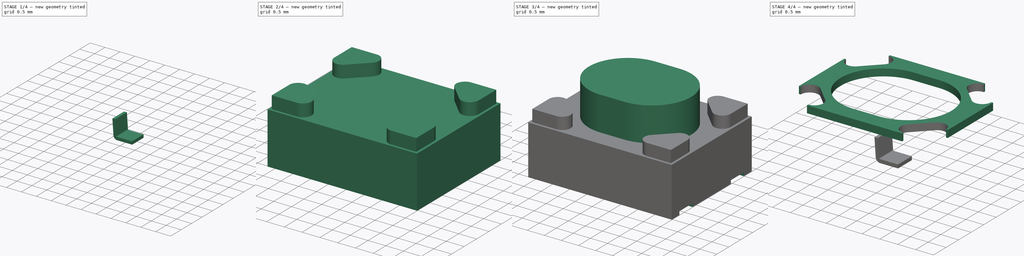
[diagram: build sequence overview — one tinted view per stage of 4, left to right]
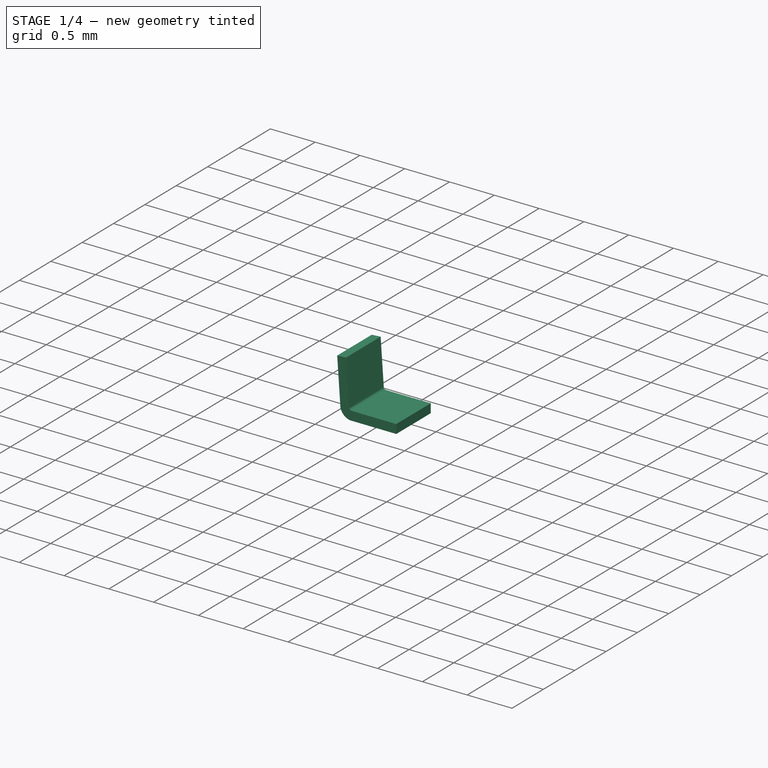
[diagram: stage 1 of 4 — iso view after this stage's code; geometry added in this stage tinted green]
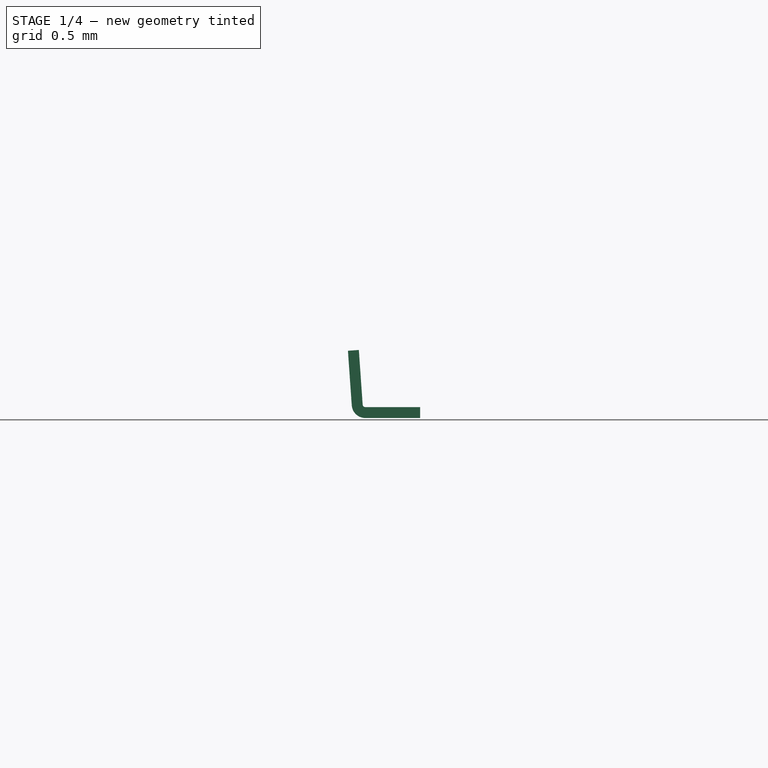
[diagram: stage 1 of 4 — front view after this stage's code; geometry added in this stage tinted green]
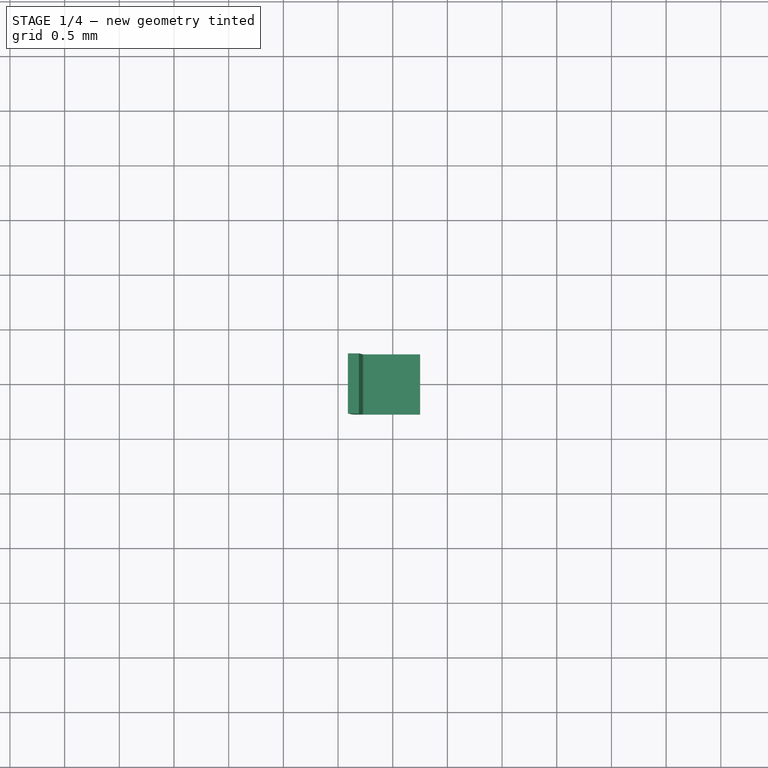
[diagram: stage 1 of 4 — top view after this stage's code; geometry added in this stage tinted green]
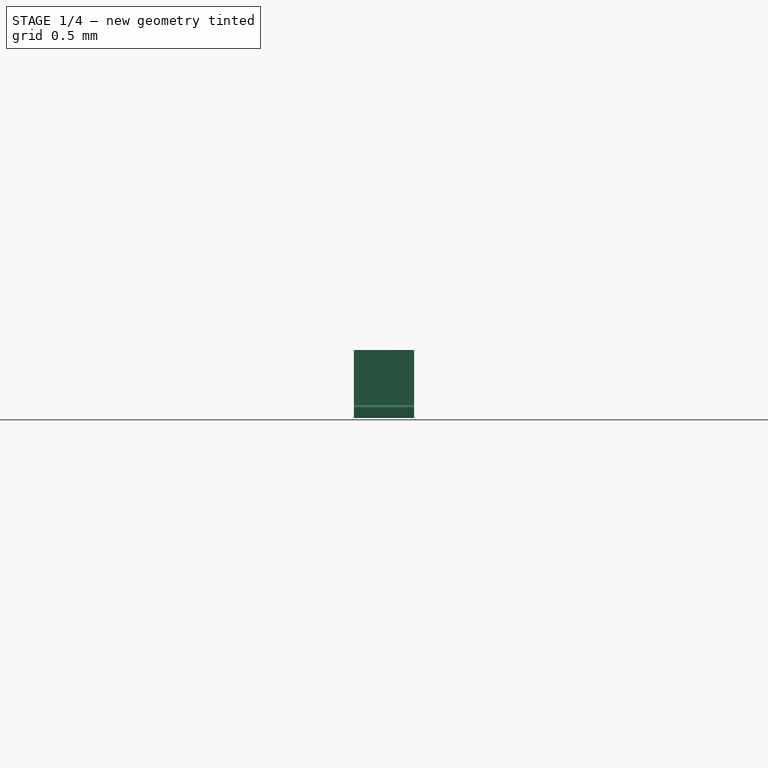
[diagram: stage 1 of 4 — right view after this stage's code; geometry added in this stage tinted green]
FCSTD DOCUMENT  (FreeCAD 0.22R37543 (Git))
Label: TSA016A2518C
License: All rights reserved
LicenseURL: https://en.wikipedia.org/wiki/All_rights_reserved
objects: Sketcher::SketchObject×6, PartDesign::Pad×5, PartDesign::Mirrored×4, PartDesign::Body×3, App::Link×3, PartDesign::MultiTransform×2, PartDesign::FeaturePython×2, PartDesign::SubShapeBinder×1, PartDesign::Pocket×1, App::Part×1
note: 30 computed .brp shape members not serialized (recipe doc carries the construction recipe); baked Part::Feature solids carry a one-line shape summary decoded from their .brp

FEATURE [PartDesign::Body] Body  label="MainBody"
  AllowCompound = false
  Group = -> [Sketch,Pad,Sketch001,Pad001,MultiTransform,Mirrored,Mirrored001,Sketch002,Pad002,Sketch004,Pocket,MultiTransform001,Mirrored002,Mirrored003,Sketch005,Pad004]
  Origin = -> Origin001
  Placement = pos=(0,0,0.05) rot=(0,0,1;0rad)
  Tip = -> Pad004
FEATURE [PartDesign::FeaturePython] BaseShape  # WARN: FeaturePython — macro-defined, semantics opaque (R4)
  Suppressed = false
  fillGaps = true
  flangeWidth = 5
  height = 10
  length = 0.5
  originLoc = 4
  radius = 0.2
  shapeType = 0
  thickness = 0.1
  width = 0.55
FEATURE [PartDesign::FeaturePython] Bend  # WARN: FeaturePython — macro-defined, semantics opaque (R4)
  AutoMiter = true
  BaseFeature = -> BaseShape
  BendType = 0
  LengthList = [0.5]
  LengthSpec = 0
  ReliefFactor = 0.7
  Suppressed = false
  UseReliefFactor = false
  angle = 86
  baseObject = -> BaseShape [Edge2]
  bendAList = [86]
  extend1 = 0
  extend2 = 0
  gap1 = 0
  gap2 = 0
  invert = false
  kfactor = 0.5
  length = 0.5
  maxExtendDist = 5
  minGap = 0.2
  minReliefGap = 1
  miterangle1 = 0
  miterangle2 = 0
  offset = 0
  radius = 0.025
  reliefType = 0
  reliefd = 1
  reliefw = 0.8
  sketchflip = false
  sketchinvert = false
  unfold = false
FEATURE [PartDesign::Body] Body003  label="Pin1"
  AllowCompound = false
  Group = -> [BaseShape,Bend]
  Origin = -> Origin004
  Placement = pos=(-1.85,1.07,0.05) rot=(0,0,1;0rad)
  Tip = -> Bend
FEATURE [App::Link] Link  label="Pin3"
  LinkPlacement = pos=(-1.85,-1.075,0.05) rot=(0,0,1;0rad)
  LinkedObject = -> Body003
  Placement = pos=(-1.85,-1.075,0.05) rot=(0,0,1;0rad)
FEATURE [App::Link] Link001  label="Pin4"
  LinkPlacement = pos=(1.85,-1.075,0.05) rot=(0,0,1;3.14159rad)
  LinkedObject = -> Link
  Placement = pos=(1.85,-1.075,0.05) rot=(0,0,1;3.14159rad)
FEATURE [App::Link] Link002  label="Pin2"
  LinkPlacement = pos=(1.85,1.075,0.05) rot=(0,0,1;3.14159rad)
  LinkedObject = -> Body003
  Placement = pos=(1.85,1.075,0.05) rot=(0,0,1;3.14159rad)
FEATURE [App::Part] Part  label="TSA016A2518C"
  Group = -> [Body,Body001,Body003,Link002,Link,Link001]
  Origin = -> Origin
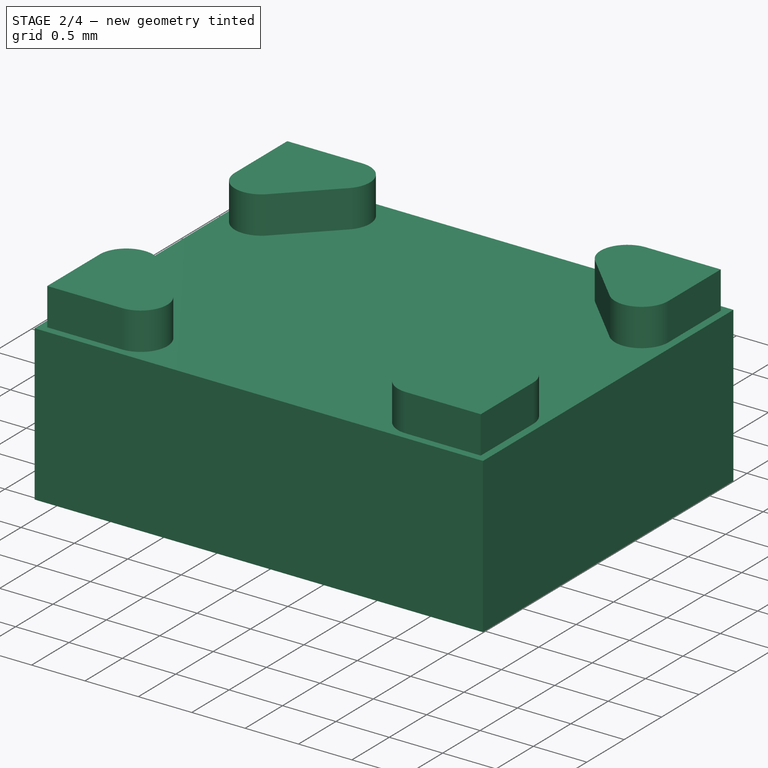
[diagram: stage 2 of 4 — iso view after this stage's code; geometry added in this stage tinted green]
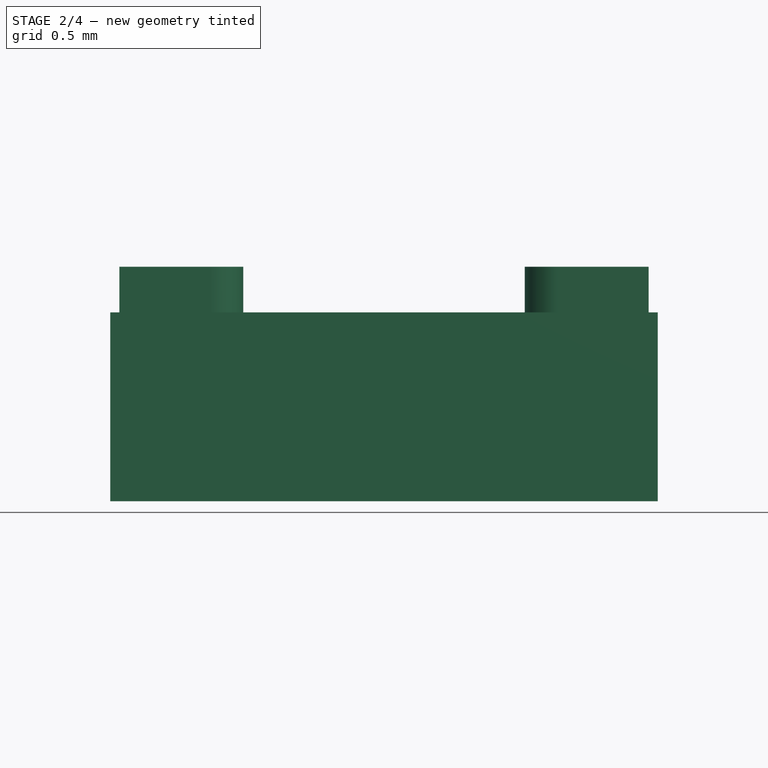
[diagram: stage 2 of 4 — front view after this stage's code; geometry added in this stage tinted green]
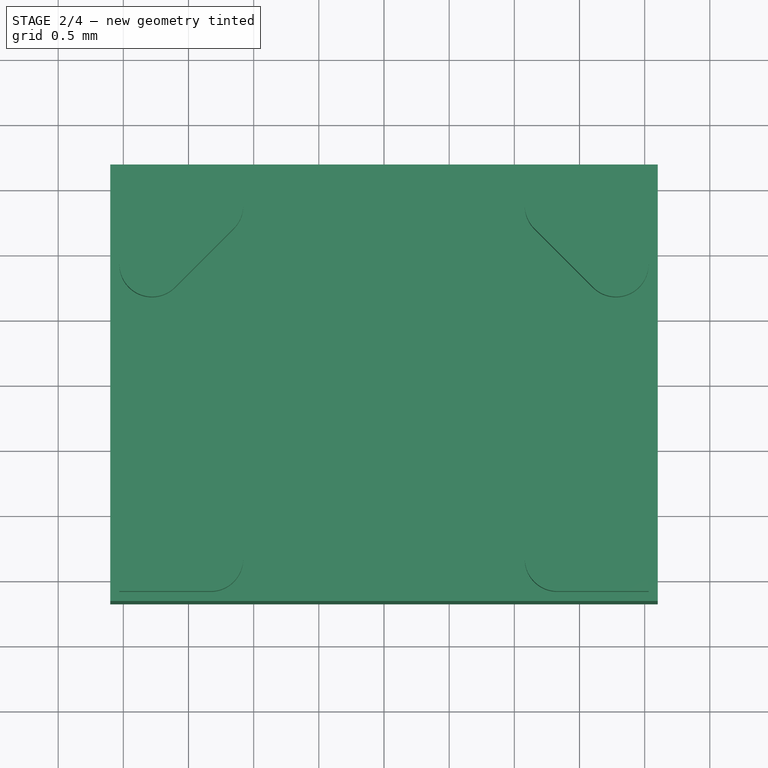
[diagram: stage 2 of 4 — top view after this stage's code; geometry added in this stage tinted green]
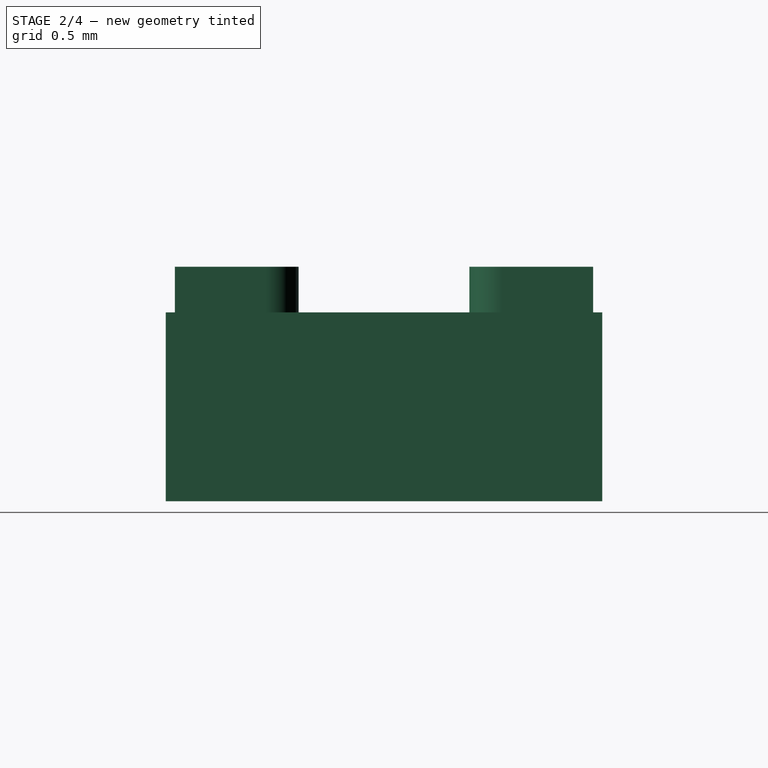
[diagram: stage 2 of 4 — right view after this stage's code; geometry added in this stage tinted green]
FEATURE [Sketcher::SketchObject] Sketch
  AttachmentSupport = -> [XY_Plane001]
  FullyConstrained = true
  MapMode = 5
  Support = -> [XY_Plane001]
  sketch-geometry (5):
    g0: LineSegment StartX=-2.1 StartY=-1.675 StartZ=0 EndX=2.1 EndY=-1.675 EndZ=0
    g1: LineSegment StartX=2.1 StartY=-1.675 StartZ=0 EndX=2.1 EndY=1.675 EndZ=0
    g2: LineSegment StartX=2.1 StartY=1.675 StartZ=0 EndX=-2.1 EndY=1.675 EndZ=0
    g3: LineSegment StartX=-2.1 StartY=1.675 StartZ=0 EndX=-2.1 EndY=-1.675 EndZ=0
    g4: GeomPoint X=0 Y=0 Z=0
  constraints (12):
    c: Coincident(g0,g1)
    c: Coincident(g1,g2)
    c: Coincident(g2,g3)
    c: Coincident(g3,g0)
    c: Horizontal(g0)
    c: Horizontal(g2)
    c: Vertical(g1)
    c: Vertical(g3)
    c: Symmetric(g2,g0,g4)
    c: Distance(g1,g3) = 4.2
    c: Distance(g0,g2) = 3.35
    c: Coincident(g4,g-1)
FEATURE [PartDesign::Pad] Pad
  Direction = (0,0,1)
  Length = 1.45
  Length2 = 10
  Profile = -> Sketch
  ReferenceAxis = -> Sketch [N_Axis]
  Suppressed = false
  Type = 0
FEATURE [Sketcher::SketchObject] Sketch001
  AttachmentSupport = -> [Pad]
  ExternalGeometry = -> [Pad]
  FullyConstrained = true
  MapMode = 5
  Placement = pos=(0,0,1.45) rot=(0,0,1;0rad)
  Support = -> [Pad]
  sketch-geometry (5):
    g0: LineSegment StartX=-2.03 StartY=1.605 StartZ=0 EndX=-1.33 EndY=1.605 EndZ=0
    g1: ArcOfCircle CenterX=-1.33 CenterY=1.355 CenterZ=0 NormalX=0 NormalY=0 NormalZ=1 AngleXU=0 Radius=0.25 StartAngle=5.49779 EndAngle=7.85398
    g2: LineSegment StartX=-1.15322 StartY=1.17822 StartZ=0 EndX=-1.60322 EndY=0.728223 EndZ=0
    g3: ArcOfCircle CenterX=-1.78 CenterY=0.905 CenterZ=0 NormalX=0 NormalY=0 NormalZ=1 AngleXU=0 Radius=0.25 StartAngle=3.14159 EndAngle=5.49779
    g4: LineSegment StartX=-2.03 StartY=1.605 StartZ=0 EndX=-2.03 EndY=0.905 EndZ=0
  constraints (13):
    c: Horizontal(g0)
    c: Tangent(g0,g1) = 1.5708
    c: Tangent(g1,g2) = 1.5708
    c: Tangent(g2,g3) = 1.5708
    c: DistanceX(g0,g0) = 0.7
    c: Equal(g3,g1)
    c: Coincident(g4,g0)
    c: Vertical(g4)
    c: Tangent(g4,g3) = -1.5708
    c: Equal(g0,g4)
    c: Radius(g3) = 0.25
    c: Distance(g-3,g0) = 0.07
    c: Distance(g-3,g4) = 0.07
FEATURE [PartDesign::Pad] Pad001
  BaseFeature = -> Pad
  Direction = (0,0,1)
  Length = 0.35
  Length2 = 10
  Profile = -> Sketch001
  ReferenceAxis = -> Sketch001 [N_Axis]
  Suppressed = false
  Type = 0
FEATURE [PartDesign::Mirrored] Mirrored
  MirrorPlane = -> Sketch001 [V_Axis]
  Suppressed = false
FEATURE [PartDesign::Mirrored] Mirrored001
  MirrorPlane = -> Sketch001 [H_Axis]
  Suppressed = false
FEATURE [PartDesign::MultiTransform] MultiTransform
  BaseFeature = -> Pad001
  Originals = -> [Pad001]
  Suppressed = false
  Transformations = -> [Mirrored,Mirrored001]
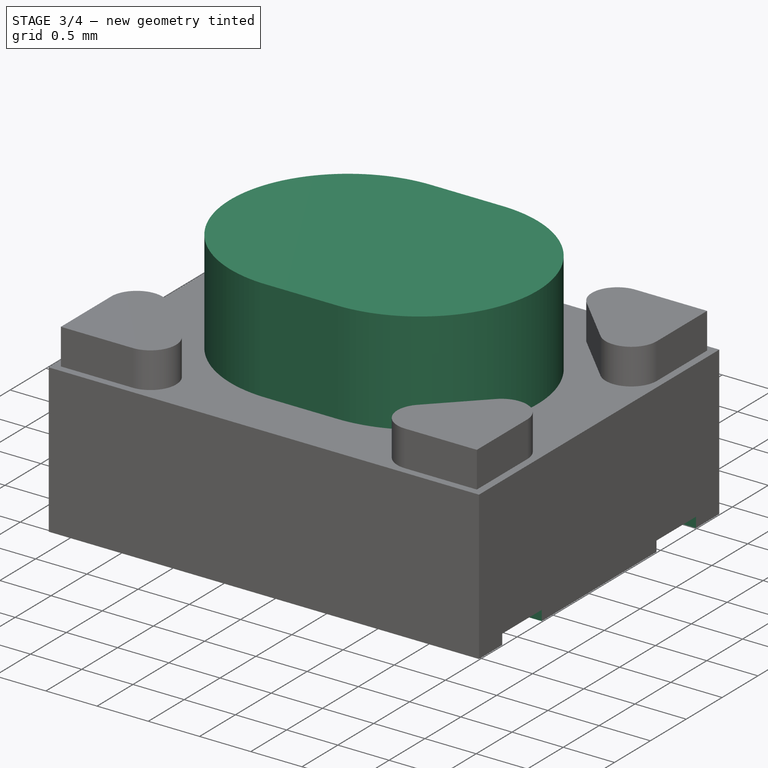
[diagram: stage 3 of 4 — iso view after this stage's code; geometry added in this stage tinted green]
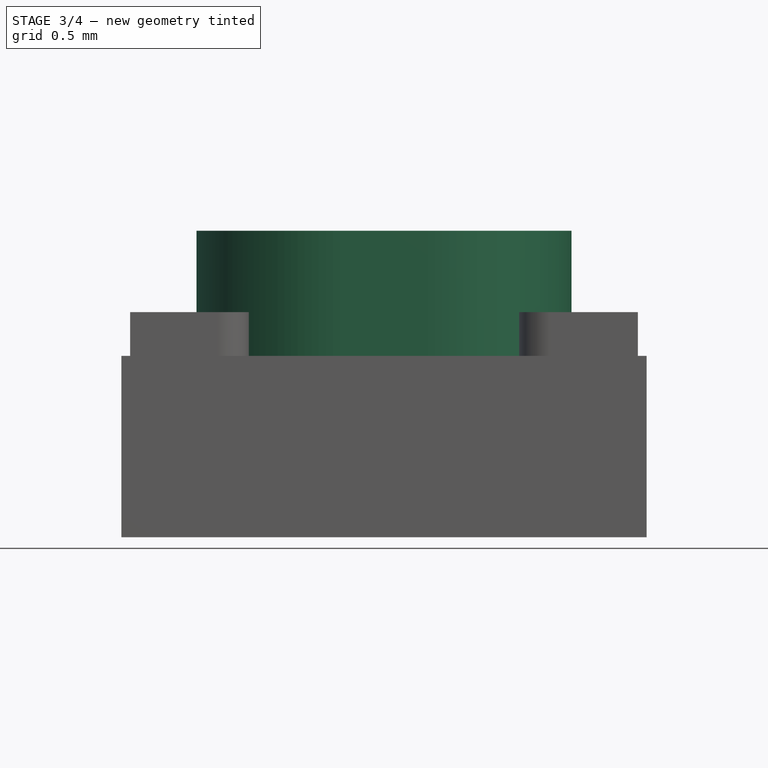
[diagram: stage 3 of 4 — front view after this stage's code; geometry added in this stage tinted green]
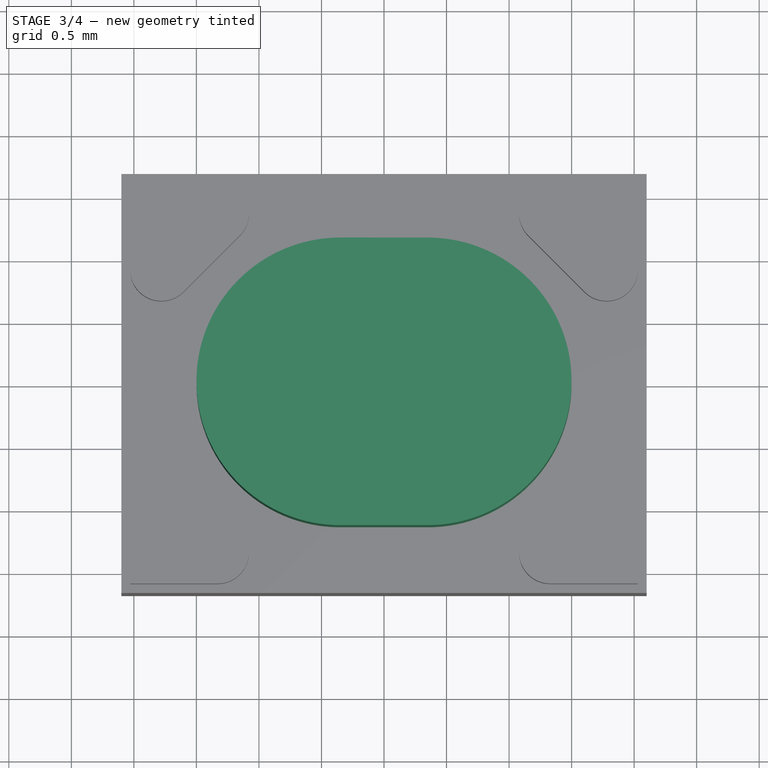
[diagram: stage 3 of 4 — top view after this stage's code; geometry added in this stage tinted green]
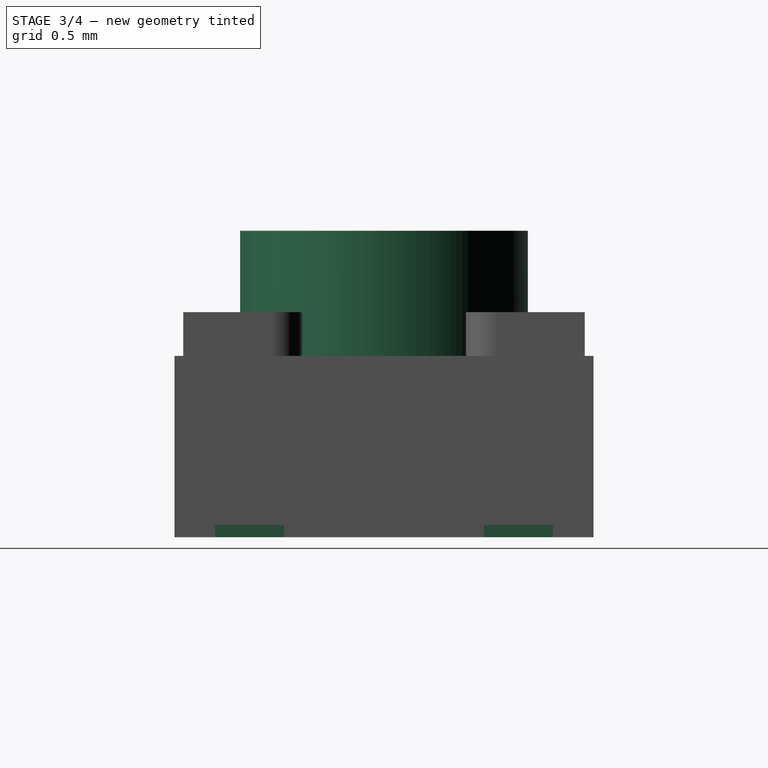
[diagram: stage 3 of 4 — right view after this stage's code; geometry added in this stage tinted green]
FEATURE [Sketcher::SketchObject] Sketch002
  AttachmentSupport = -> [MultiTransform]
  FullyConstrained = true
  MapMode = 5
  Placement = pos=(0,0,1.45) rot=(0,0,1;0rad)
  Support = -> [MultiTransform]
  sketch-geometry (4):
    g0: ArcOfCircle CenterX=-0.35 CenterY=0 CenterZ=0 NormalX=0 NormalY=0 NormalZ=1 AngleXU=0 Radius=1.15 StartAngle=1.5708 EndAngle=4.71239
    g1: ArcOfCircle CenterX=0.35 CenterY=0 CenterZ=0 NormalX=0 NormalY=0 NormalZ=1 AngleXU=0 Radius=1.15 StartAngle=4.71239 EndAngle=7.85398
    g2: LineSegment StartX=-0.35 StartY=1.15 StartZ=0 EndX=0.35 EndY=1.15 EndZ=0
    g3: LineSegment StartX=-0.35 StartY=-1.15 StartZ=0 EndX=0.35 EndY=-1.15 EndZ=0
  constraints (9):
    c: Tangent(g0,g2) = 1.5708
    c: Tangent(g0,g3) = -1.5708
    c: Tangent(g1,g2) = 1.5708
    c: Tangent(g1,g3) = -1.5708
    c: Equal(g0,g1)
    c: Horizontal(g3)
    c: Distance(g3,g2) = 2.3
    c: DistanceX(g2,g2) = 0.7
    c: Symmetric(g0,g1,g-1)
FEATURE [PartDesign::Pad] Pad002
  BaseFeature = -> MultiTransform
  Direction = (0,0,1)
  Length = 1
  Length2 = 10
  Profile = -> Sketch002
  ReferenceAxis = -> Sketch002 [N_Axis]
  Suppressed = false
  Type = 0
FEATURE [PartDesign::Body] Body001  label="FrontPlate"
  AllowCompound = false
  Group = -> [Binder,Sketch003,Pad003]
  Origin = -> Origin002
  Tip = -> Pad003
FEATURE [Sketcher::SketchObject] Sketch004
  AttachmentSupport = -> [Pad002]
  ExternalGeometry = -> [Pad002]
  FullyConstrained = true
  MapMode = 5
  Placement = pos=(0,0,0) rot=(1,0,0;3.14159rad)
  Support = -> [Pad002]
  sketch-geometry (5):
    g0: LineSegment StartX=-2.1 StartY=1.35 StartZ=0 EndX=-2.1 EndY=0.8 EndZ=0
    g1: LineSegment StartX=-2.1 StartY=0.8 StartZ=0 EndX=-1.6 EndY=0.8 EndZ=0
    g2: LineSegment StartX=-1.6 StartY=0.8 StartZ=0 EndX=-1.6 EndY=1.35 EndZ=0
    g3: LineSegment StartX=-1.6 StartY=1.35 StartZ=0 EndX=-2.1 EndY=1.35 EndZ=0
    g4: GeomPoint X=-1.85 Y=1.075 Z=0
  constraints (13):
    c: Coincident(g0,g1)
    c: Coincident(g1,g2)
    c: Coincident(g2,g3)
    c: Coincident(g3,g0)
    c: Vertical(g0)
    c: Vertical(g2)
    c: Horizontal(g1)
    c: Horizontal(g3)
    c: Symmetric(g2,g0,g4)
    c: Distance(g2,g2) = 0.55
    c: Distance(g4,g-1) = 1.075
    c: DistanceX(g3,g3) = 0.5
    c: PointOnObject(g0,g-3)
FEATURE [PartDesign::Pocket] Pocket
  BaseFeature = -> Pad002
  Direction = (0,0,1)
  Length = 0.1
  Length2 = 5
  Profile = -> Sketch004
  ReferenceAxis = -> Sketch004 [N_Axis]
  Suppressed = false
  Type = 0
FEATURE [PartDesign::Mirrored] Mirrored002
  MirrorPlane = -> Sketch004 [V_Axis]
  Suppressed = false
FEATURE [PartDesign::Mirrored] Mirrored003
  MirrorPlane = -> Sketch004 [H_Axis]
  Suppressed = false
FEATURE [PartDesign::MultiTransform] MultiTransform001
  BaseFeature = -> Pocket
  Originals = -> [Pocket]
  Suppressed = false
  Transformations = -> [Mirrored002,Mirrored003]
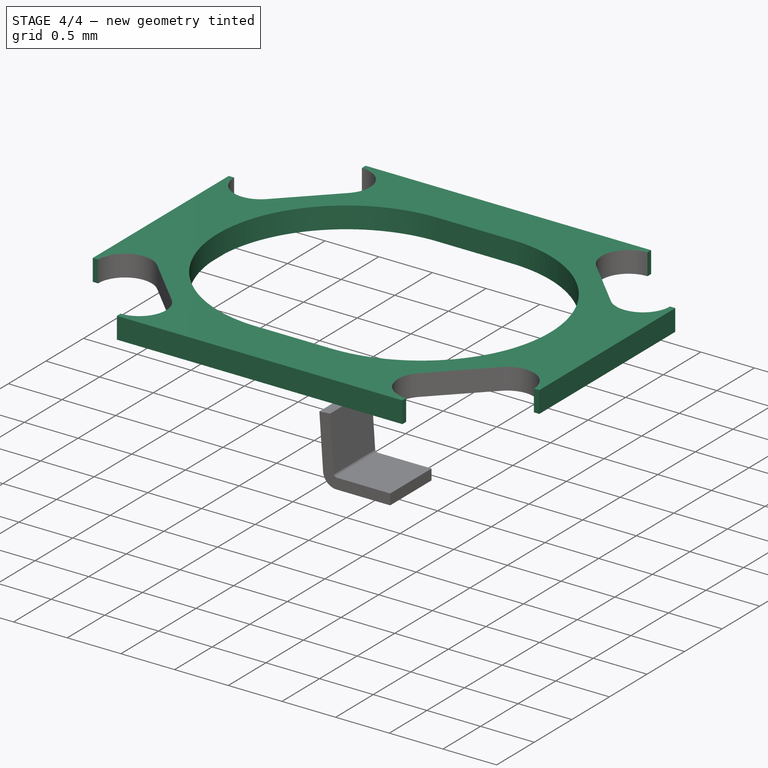
[diagram: stage 4 of 4 — iso view after this stage's code; geometry added in this stage tinted green]
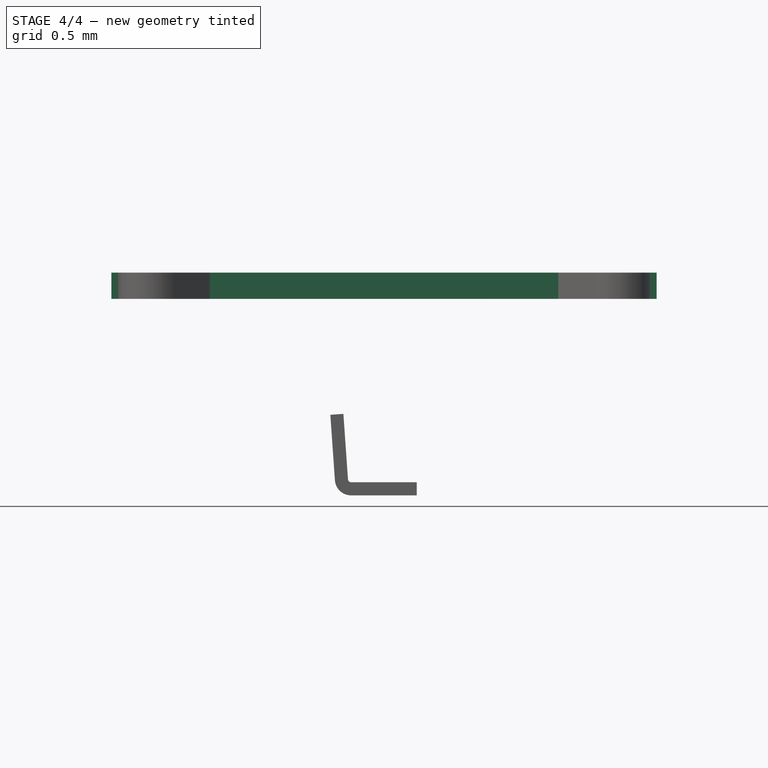
[diagram: stage 4 of 4 — front view after this stage's code; geometry added in this stage tinted green]
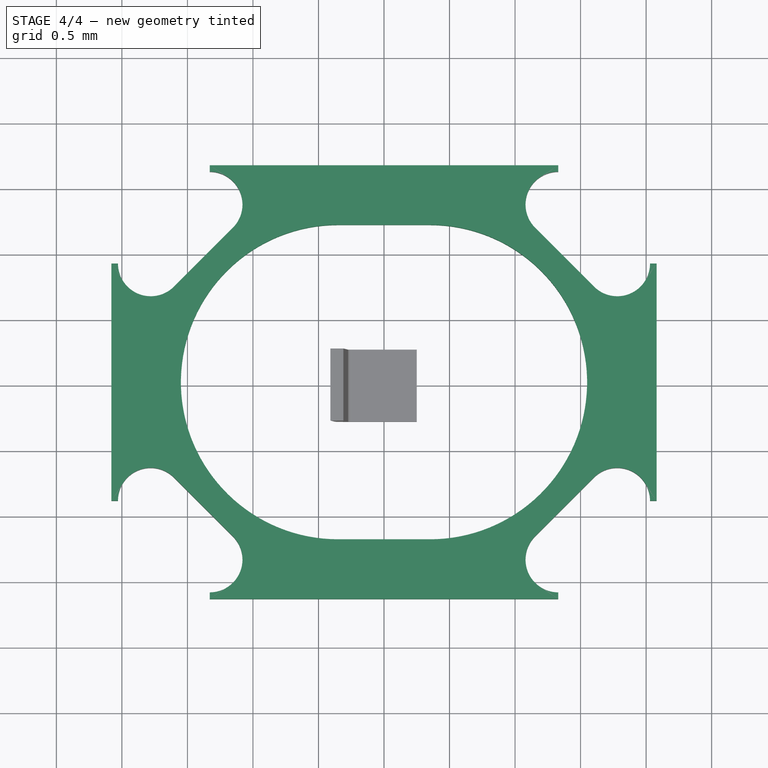
[diagram: stage 4 of 4 — top view after this stage's code; geometry added in this stage tinted green]
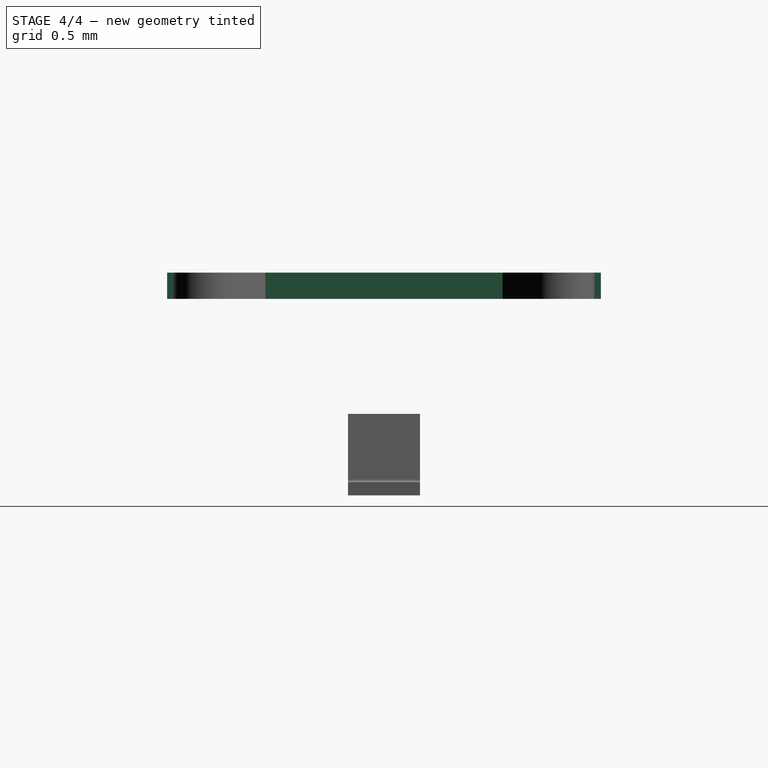
[diagram: stage 4 of 4 — right view after this stage's code; geometry added in this stage tinted green]
FEATURE [PartDesign::SubShapeBinder] Binder
  BindCopyOnChange = 0
  BindMode = 0
  ClaimChildren = false
  Context = -> Part [Body001.Binder.]
  Fuse = false
  MakeFace = true
  OffsetFill = false
  OffsetIntersection = false
  OffsetJoinType = 0
  OffsetOpenResult = false
  PartialLoad = false
  Relative = true
  Support = -> [Body[Pad002.Face5]]
  _Version = 2
FEATURE [Sketcher::SketchObject] Sketch003
  AttachmentSupport = -> [Binder]
  ExternalGeometry = -> [Binder]
  FullyConstrained = true
  MapMode = 5
  Placement = pos=(0,0,1.5) rot=(0,0,1;0rad)
  Support = -> [Binder]
  sketch-geometry (28):
    g0: LineSegment StartX=2.03 StartY=-0.905 StartZ=0 EndX=2.08 EndY=-0.905 EndZ=0
    g1: LineSegment StartX=2.08 StartY=-0.905 StartZ=0 EndX=2.08 EndY=0.905 EndZ=0
    g2: LineSegment StartX=2.08 StartY=0.905 StartZ=0 EndX=2.03 EndY=0.905 EndZ=0
    g3: LineSegment StartX=1.60322 StartY=-0.728223 StartZ=0 EndX=1.15322 EndY=-1.17822 EndZ=0
    g4: ArcOfCircle CenterX=1.78 CenterY=-0.905 CenterZ=0 NormalX=0 NormalY=0 NormalZ=1 AngleXU=0 Radius=0.25 StartAngle=0 EndAngle=2.35619
    g5: ArcOfCircle CenterX=1.33 CenterY=-1.355 CenterZ=0 NormalX=0 NormalY=0 NormalZ=1 AngleXU=0 Radius=0.25 StartAngle=2.35619 EndAngle=4.71239
    g6: LineSegment StartX=1.33 StartY=-1.605 StartZ=0 EndX=1.33 EndY=-1.655 EndZ=0
    g7: LineSegment StartX=1.33 StartY=-1.655 StartZ=0 EndX=-1.33 EndY=-1.655 EndZ=0
    g8: LineSegment StartX=-1.33 StartY=-1.655 StartZ=0 EndX=-1.33 EndY=-1.605 EndZ=0
    g9: LineSegment StartX=-2.03 StartY=-0.905 StartZ=0 EndX=-2.08 EndY=-0.905 EndZ=0
    g10: LineSegment StartX=-2.08 StartY=-0.905 StartZ=0 EndX=-2.08 EndY=0.905 EndZ=0
    g11: LineSegment StartX=-2.08 StartY=0.905 StartZ=0 EndX=-2.03 EndY=0.905 EndZ=0
    g12: LineSegment StartX=-1.33 StartY=1.605 StartZ=0 EndX=-1.33 EndY=1.655 EndZ=0
    g13: LineSegment StartX=-1.33 StartY=1.655 StartZ=0 EndX=1.33 EndY=1.655 EndZ=0
    g14: LineSegment StartX=1.33 StartY=1.655 StartZ=0 EndX=1.33 EndY=1.605 EndZ=0
    g15: ArcOfCircle CenterX=-1.78 CenterY=0.905 CenterZ=0 NormalX=0 NormalY=0 NormalZ=1 AngleXU=0 Radius=0.25 StartAngle=3.14159 EndAngle=5.49779
    g16: ArcOfCircle CenterX=-1.33 CenterY=1.355 CenterZ=0 NormalX=0 NormalY=0 NormalZ=1 AngleXU=0 Radius=0.25 StartAngle=5.49779 EndAngle=7.85398
    g17: ArcOfCircle CenterX=-1.78 CenterY=-0.905 CenterZ=0 NormalX=0 NormalY=0 NormalZ=1 AngleXU=0 Radius=0.25 StartAngle=0.785398 EndAngle=3.14159
    g18: LineSegment StartX=-1.60322 StartY=0.728223 StartZ=0 EndX=-1.15322 EndY=1.17822 EndZ=0
    g19: ArcOfCircle CenterX=-0.35 CenterY=-1e-16 CenterZ=0 NormalX=0 NormalY=0 NormalZ=1 AngleXU=0 Radius=1.2 StartAngle=1.5708 EndAngle=4.71239
    g20: ArcOfCircle CenterX=0.35 CenterY=1e-16 CenterZ=0 NormalX=0 NormalY=0 NormalZ=1 AngleXU=0 Radius=1.2 StartAngle=4.71239 EndAngle=7.85398
    g21: LineSegment StartX=-0.35 StartY=1.2 StartZ=0 EndX=0.35 EndY=1.2 EndZ=0
    g22: LineSegment StartX=-0.35 StartY=-1.2 StartZ=0 EndX=0.35 EndY=-1.2 EndZ=0
    g23: ArcOfCircle CenterX=1.33 CenterY=1.355 CenterZ=0 NormalX=0 NormalY=0 NormalZ=1 AngleXU=0 Radius=0.25 StartAngle=1.5708 EndAngle=3.92699
    g24: ArcOfCircle CenterX=1.78 CenterY=0.905 CenterZ=0 NormalX=0 NormalY=0 NormalZ=1 AngleXU=0 Radius=0.25 StartAngle=3.92699 EndAngle=6.28319
    g25: ArcOfCircle CenterX=-1.33 CenterY=-1.355 CenterZ=0 NormalX=0 NormalY=0 NormalZ=1 AngleXU=0 Radius=0.25 StartAngle=4.71239 EndAngle=7.06858
    g26: LineSegment StartX=-1.60322 StartY=-0.728223 StartZ=0 EndX=-1.15322 EndY=-1.17822 EndZ=0
    g27: LineSegment StartX=1.15322 StartY=1.17822 StartZ=0 EndX=1.60322 EndY=0.728223 EndZ=0
  constraints (65):
    c: Horizontal(g0)
    c: Coincident(g1,g0)
    c: Vertical(g1)
    c: Coincident(g2,g1)
    c: Horizontal(g2)
    c: Coincident(g4,g-5)
    c: Coincident(g4,g0)
    c: Tangent(g4,g3) = -1.5708
    c: Coincident(g5,g-6)
    c: Tangent(g5,g3) = -1.5708
    c: Coincident(g5,g-6)
    c: Coincident(g0,g-5)
    c: Coincident(g6,g5)
    c: Vertical(g6)
    c: Coincident(g7,g6)
    c: Horizontal(g7)
    c: Coincident(g8,g7)
    c: Coincident(g8,g-7)
    c: Vertical(g8)
    c: Horizontal(g9)
    c: Coincident(g10,g9)
    c: Vertical(g10)
    c: Coincident(g11,g10)
    c: Coincident(g11,g-9)
    c: Horizontal(g11)
    c: Coincident(g12,g-3)
    c: Vertical(g12)
    c: Coincident(g13,g12)
    c: Horizontal(g13)
    c: Coincident(g14,g13)
    c: Coincident(g14,g-4)
    c: Vertical(g14)
    c: Equal(g2,g14)
    c: Equal(g14,g11)
    c: Equal(g11,g8)
    c: Coincident(g-10,g2)
    c: Distance(g2,g2) = 0.05
    c: Coincident(g15,g-9)
    c: Coincident(g15,g11)
    c: Coincident(g16,g-3)
    c: Coincident(g16,g12)
    c: Tangent(g16,g18) = -1.5708
    c: Tangent(g15,g18) = -1.5708
    c: Tangent(g19,g21) = 1.5708
    c: Tangent(g19,g22) = -1.5708
    c: Tangent(g20,g21) = 1.5708
    c: Tangent(g20,g22) = -1.5708
    c: Equal(g19,g20)
    c: Horizontal(g22)
    c: Symmetric(g19,g20,g-1)
    c: Coincident(g23,g-4)
    c: Coincident(g23,g14)
    c: Coincident(g24,g-10)
    c: Coincident(g24,g2)
    c: Tangent(g25,g26) = 1.5708
    c: Coincident(g9,g-8)
    c: Coincident(g17,g9)
    c: Coincident(g17,g-8)
    c: Tangent(g26,g17) = 1.5708
    c: Coincident(g25,g8)
    c: Coincident(g25,g-7)
    c: Tangent(g27,g23) = -1.5708
    c: Tangent(g27,g24) = -1.5708
    c: Distance(g22,g21) = 2.4
    c: DistanceX(g19,g20) = 0.7
FEATURE [PartDesign::Pad] Pad003
  Direction = (0,0,1)
  Length = 0.2
  Length2 = 10
  Profile = -> Sketch003
  ReferenceAxis = -> Sketch003 [N_Axis]
  Suppressed = false
  Type = 0
FEATURE [Sketcher::SketchObject] Sketch005
  AttachmentSupport = -> [MultiTransform001]
  ExternalGeometry = -> [MultiTransform001]
  FullyConstrained = true
  MapMode = 5
  Placement = pos=(0,0,0) rot=(1,0,0;3.14159rad)
  Support = -> [MultiTransform001]
  sketch-geometry (24):
    g0: ArcOfCircle CenterX=-1.9 CenterY=0.425 CenterZ=0 NormalX=0 NormalY=0 NormalZ=1 AngleXU=0 Radius=0.2 StartAngle=1.5708 EndAngle=3.14159
    g1: LineSegment StartX=-1.9 StartY=0.625 StartZ=0 EndX=-1.7 EndY=0.625 EndZ=0
    g2: ArcOfCircle CenterX=-1.7 CenterY=0.825 CenterZ=0 NormalX=0 NormalY=0 NormalZ=1 AngleXU=0 Radius=0.2 StartAngle=4.71239 EndAngle=6.28319
    g3: LineSegment StartX=-1.5 StartY=0.825 StartZ=0 EndX=-1.5 EndY=1.475 EndZ=0
    g4: ArcOfCircle CenterX=-1.3 CenterY=1.475 CenterZ=0 NormalX=0 NormalY=0 NormalZ=1 AngleXU=0 Radius=0.2 StartAngle=1.5708 EndAngle=3.14159
    g5: ArcOfCircle CenterX=1.9 CenterY=0.425 CenterZ=0 NormalX=0 NormalY=0 NormalZ=1 AngleXU=0 Radius=0.2 StartAngle=2e-16 EndAngle=1.5708
    g6: LineSegment StartX=1.9 StartY=0.625 StartZ=0 EndX=1.7 EndY=0.625 EndZ=0
    g7: ArcOfCircle CenterX=1.7 CenterY=0.825 CenterZ=0 NormalX=0 NormalY=0 NormalZ=1 AngleXU=0 Radius=0.2 StartAngle=3.14159 EndAngle=4.71239
    g8: LineSegment StartX=1.5 StartY=0.825 StartZ=0 EndX=1.5 EndY=1.475 EndZ=0
    g9: ArcOfCircle CenterX=1.3 CenterY=1.475 CenterZ=0 NormalX=0 NormalY=0 NormalZ=1 AngleXU=0 Radius=0.2 StartAngle=0 EndAngle=1.5708
    g10: LineSegment StartX=-1.3 StartY=1.675 StartZ=0 EndX=1.3 EndY=1.675 EndZ=0
    g11: ArcOfCircle CenterX=-1.9 CenterY=-0.425 CenterZ=0 NormalX=0 NormalY=0 NormalZ=1 AngleXU=0 Radius=0.2 StartAngle=3.14159 EndAngle=4.71239
    g12: LineSegment StartX=-1.9 StartY=-0.625 StartZ=0 EndX=-1.7 EndY=-0.625 EndZ=0
    g13: ArcOfCircle CenterX=-1.7 CenterY=-0.825 CenterZ=0 NormalX=0 NormalY=0 NormalZ=1 AngleXU=0 Radius=0.2 StartAngle=3e-16 EndAngle=1.5708
    g14: LineSegment StartX=-1.5 StartY=-0.825 StartZ=0 EndX=-1.5 EndY=-1.475 EndZ=0
    g15: ArcOfCircle CenterX=-1.3 CenterY=-1.475 CenterZ=0 NormalX=0 NormalY=0 NormalZ=1 AngleXU=0 Radius=0.2 StartAngle=3.14159 EndAngle=4.71239
    g16: ArcOfCircle CenterX=1.9 CenterY=-0.425 CenterZ=0 NormalX=0 NormalY=0 NormalZ=1 AngleXU=0 Radius=0.2 StartAngle=4.71239 EndAngle=6.28319
    g17: LineSegment StartX=1.9 StartY=-0.625 StartZ=0 EndX=1.7 EndY=-0.625 EndZ=0
    g18: ArcOfCircle CenterX=1.7 CenterY=-0.825 CenterZ=0 NormalX=0 NormalY=0 NormalZ=1 AngleXU=0 Radius=0.2 StartAngle=1.5708 EndAngle=3.14159
    g19: LineSegment StartX=1.5 StartY=-0.825 StartZ=0 EndX=1.5 EndY=-1.475 EndZ=0
    g20: ArcOfCircle CenterX=1.3 CenterY=-1.475 CenterZ=0 NormalX=0 NormalY=0 NormalZ=1 AngleXU=0 Radius=0.2 StartAngle=4.71239 EndAngle=6.28319
    g21: LineSegment StartX=-1.3 StartY=-1.675 StartZ=0 EndX=1.3 EndY=-1.675 EndZ=0
    g22: LineSegment StartX=-2.1 StartY=0.425 StartZ=0 EndX=-2.1 EndY=-0.425 EndZ=0
    g23: LineSegment StartX=2.1 StartY=0.425 StartZ=0 EndX=2.1 EndY=-0.425 EndZ=0
  constraints (54):
    c: Tangent(g0,g1) = 1.5708
    c: Tangent(g1,g2) = -1.5708
    c: Tangent(g2,g3) = -1.5708
    c: Tangent(g3,g4) = 1.5708
    c: Horizontal(g1)
    c: Equal(g0,g2)
    c: Equal(g2,g4)
    c: Vertical(g3)
    c: Distance(g0,g-4) = 1.25
    c: DistanceX(g-4,g4) = 0.8
    c: Tangent(g0,g-3) = 1.5708
    c: Tangent(g4,g-4) = 1.5708
    c: Radius(g2) = 0.2
    c: Tangent(g5,g6) = -1.5708
    c: Tangent(g6,g7) = 1.5708
    c: Tangent(g7,g8) = 1.5708
    c: Tangent(g8,g9) = -1.5708
    c: Horizontal(g6)
    c: Equal(g5,g7)
    c: Equal(g7,g9)
    c: Vertical(g8)
    c: Radius(g7) = 0.2
    c: Coincident(g10,g4)
    c: Tangent(g10,g9) = 1.5708
    c: Symmetric(g4,g9,g-2)
    c: Tangent(g5,g-5) = 1.5708
    c: Tangent(g11,g12) = -1.5708
    c: Tangent(g12,g13) = 1.5708
    c: Tangent(g13,g14) = 1.5708
    c: Tangent(g14,g15) = -1.5708
    c: Horizontal(g12)
    c: Equal(g11,g13)
    c: Equal(g13,g15)
    c: Vertical(g14)
    c: Tangent(g16,g17) = 1.5708
    c: Tangent(g17,g18) = -1.5708
    c: Tangent(g18,g19) = -1.5708
    c: Tangent(g19,g20) = 1.5708
    c: Horizontal(g17)
    c: Equal(g16,g18)
    c: Equal(g18,g20)
    c: Vertical(g19)
    c: Radius(g18) = 0.2
    c: Tangent(g21,g20) = -1.5708
    c: Coincident(g22,g0)
    c: Coincident(g23,g5)
    c: Symmetric(g9,g20,g-1)
    c: Symmetric(g15,g4,g-1)
    c: Symmetric(g11,g16,g-2)
    c: Symmetric(g0,g11,g-1)
    c: Tangent(g22,g11) = -1.5708
    c: Tangent(g21,g15) = -1.5708
    c: Symmetric(g16,g5,g-1)
    c: Tangent(g23,g16) = 1.5708
FEATURE [PartDesign::Pad] Pad004
  BaseFeature = -> MultiTransform001
  Direction = (0,0,-1)
  Length = 0.05
  Length2 = 10
  Profile = -> Sketch005
  ReferenceAxis = -> Sketch005 [N_Axis]
  Suppressed = false
  Type = 0
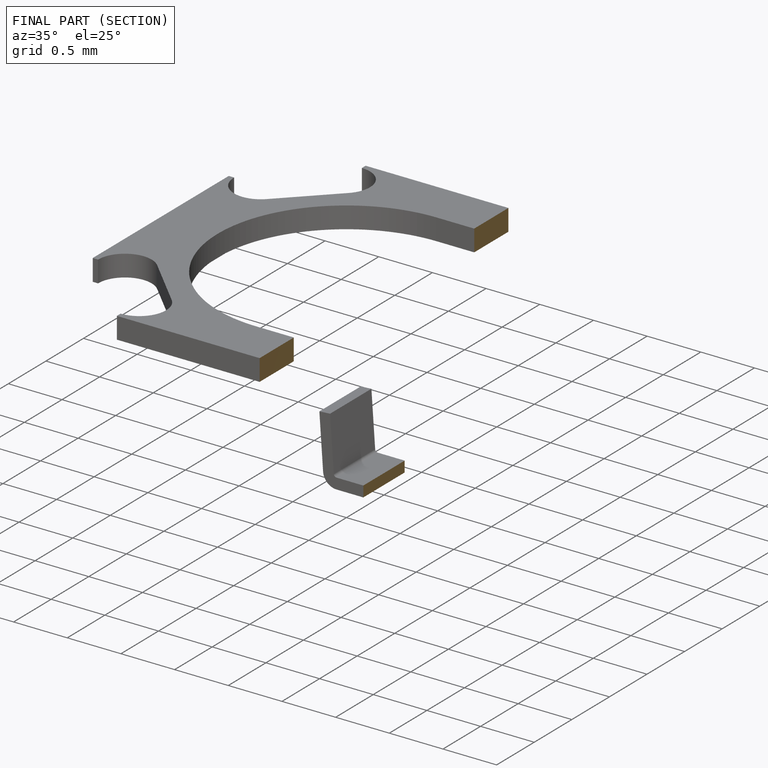
[diagram: finished part — half-section view (interior)]
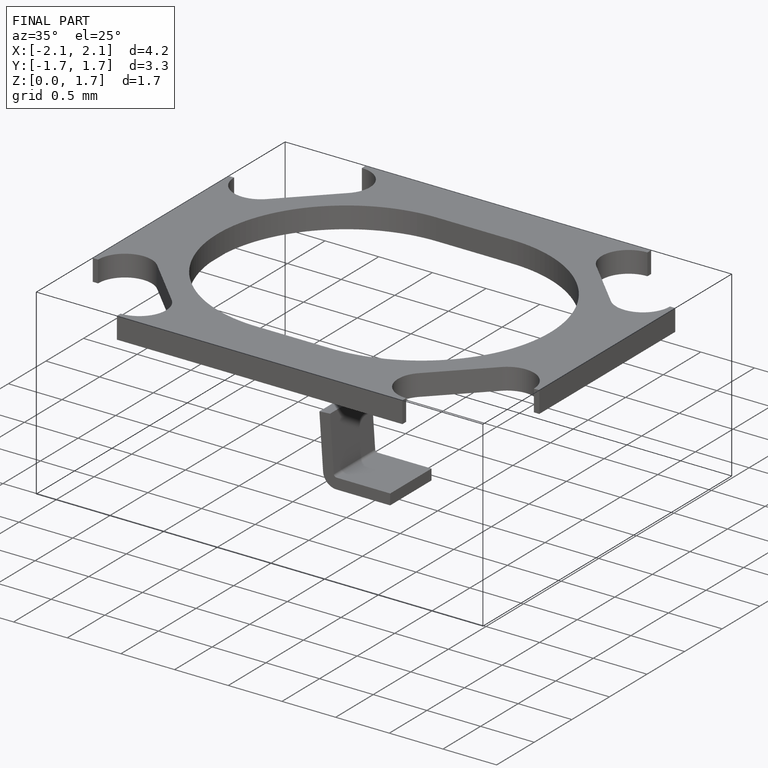
[diagram: finished part — iso view with bounding-box wireframe]
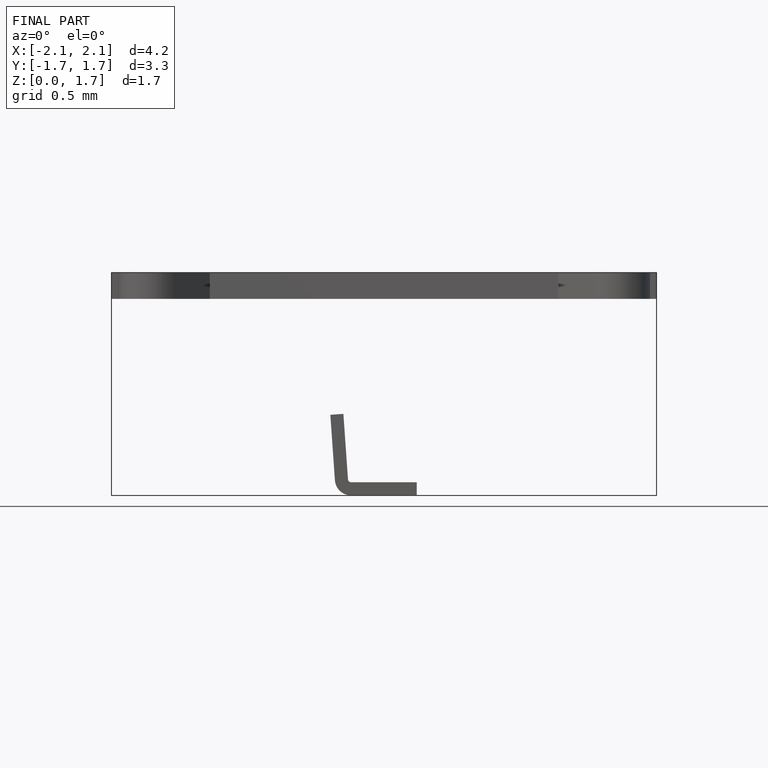
[diagram: finished part — front view with bounding-box wireframe]
